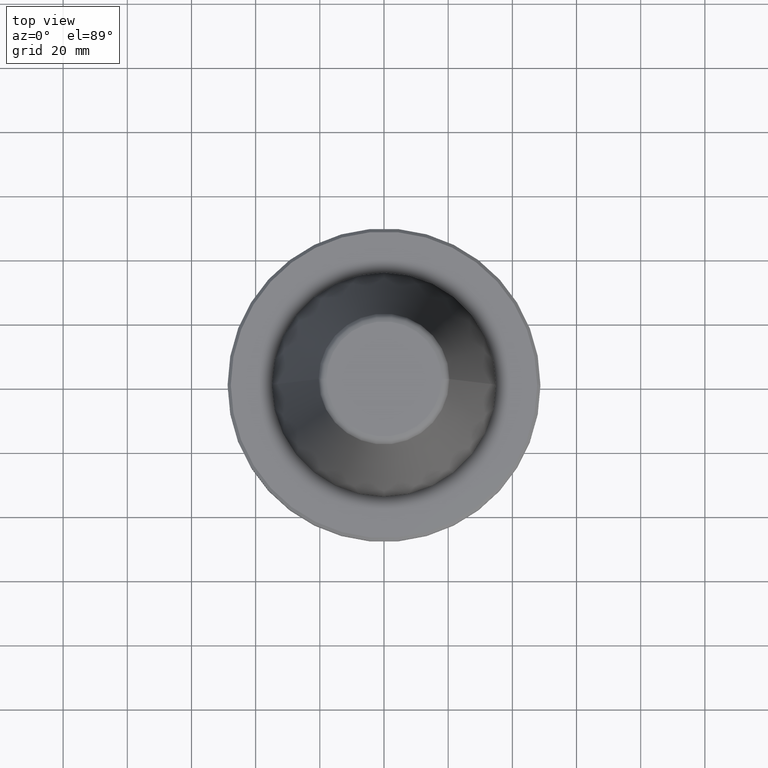
[diagram: clean part render]
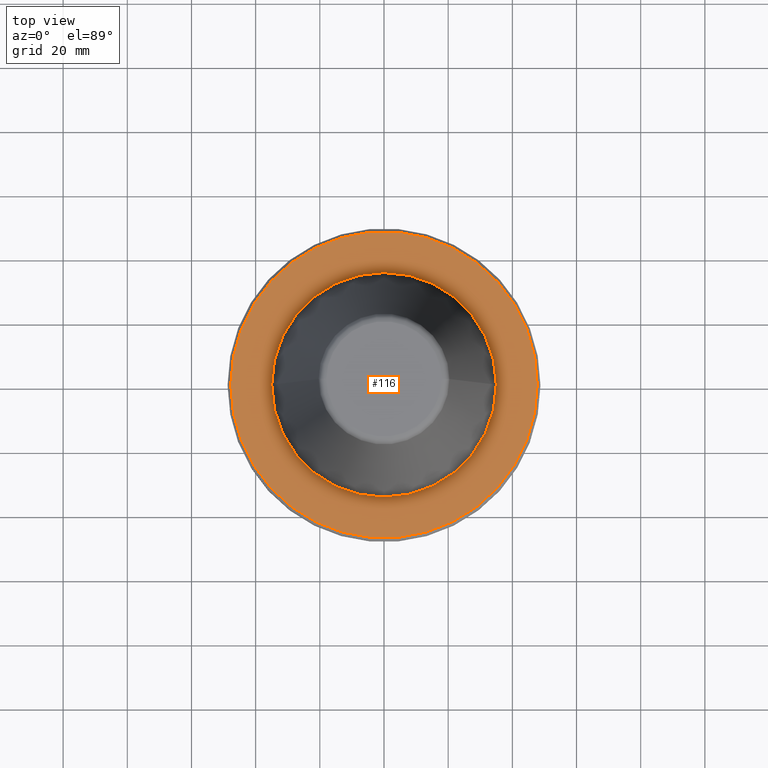
[diagram: same view with one face highlighted and labeled with its STEP entity id]
A machine part, top view. The second image highlights one B-rep face of the part: STEP entity #116.
In plain terms, the highlighted planar face has unit normal (0, 0, -1).
Its self-contained STEP definition (entity closure, byte-faithful):
#23 = DIRECTION ( 'NONE',  ( -0.0000000000000000000, -0.0000000000000000000, 1.000000000000000000 ) ) ;
#49 = DIRECTION ( 'NONE',  ( 1.000000000000000000, 0.0000000000000000000, 0.0000000000000000000 ) ) ;
#116 = ADVANCED_FACE ( 'NONE', ( #315, #158 ), #924, .F. ) ;
#120 = VERTEX_POINT ( 'NONE', #464 ) ;
#140 = EDGE_CURVE ( 'NONE', #771, #426, #479, .T. ) ;
#158 = FACE_OUTER_BOUND ( 'NONE', #583, .T. ) ;
#179 = DIRECTION ( 'NONE',  ( -0.0000000000000000000, -0.0000000000000000000, 1.000000000000000000 ) ) ;
#190 = DIRECTION ( 'NONE',  ( -0.0000000000000000000, -0.0000000000000000000, 1.000000000000000000 ) ) ;
#205 = EDGE_LOOP ( 'NONE', ( #469, #243 ) ) ;
#220 = ORIENTED_EDGE ( 'NONE', *, *, #454, .T. ) ;
#243 = ORIENTED_EDGE ( 'NONE', *, *, #358, .F. ) ;
#252 = DIRECTION ( 'NONE',  ( -0.0000000000000000000, -0.0000000000000000000, 1.000000000000000000 ) ) ;
#307 = VERTEX_POINT ( 'NONE', #884 ) ;
#309 = AXIS2_PLACEMENT_3D ( 'NONE', #679, #931, #871 ) ;
#315 = FACE_BOUND ( 'NONE', #205, .T. ) ;
#351 = EDGE_CURVE ( 'NONE', #307, #120, #508, .T. ) ;
#358 = EDGE_CURVE ( 'NONE', #120, #307, #898, .T. ) ;
#384 = ORIENTED_EDGE ( 'NONE', *, *, #140, .T. ) ;
#400 = CARTESIAN_POINT ( 'NONE',  ( 47.74999999999995700, 5.908920805885974100E-015, -3.199999999999869600 ) ) ;
#426 = VERTEX_POINT ( 'NONE', #665 ) ;
#427 = CARTESIAN_POINT ( 'NONE',  ( 0.0000000000000000000, 0.0000000000000000000, -3.199999999999869600 ) ) ;
#439 = CIRCLE ( 'NONE', #546, 47.74999999999995700 ) ;
#454 = EDGE_CURVE ( 'NONE', #426, #771, #439, .T. ) ;
#464 = CARTESIAN_POINT ( 'NONE',  ( -34.99999999999992200, 4.286263797015727000E-015, -3.199999999999966900 ) ) ;
#469 = ORIENTED_EDGE ( 'NONE', *, *, #351, .F. ) ;
#479 = CIRCLE ( 'NONE', #883, 47.74999999999995700 ) ;
#502 = DIRECTION ( 'NONE',  ( 1.000000000000000000, 0.0000000000000000000, 0.0000000000000000000 ) ) ;
#508 = CIRCLE ( 'NONE', #737, 34.99999999999992200 ) ;
#546 = AXIS2_PLACEMENT_3D ( 'NONE', #427, #190, #502 ) ;
#583 = EDGE_LOOP ( 'NONE', ( #220, #384 ) ) ;
#634 = CARTESIAN_POINT ( 'NONE',  ( 0.0000000000000000000, 0.0000000000000000000, -3.199999999999869600 ) ) ;
#655 = CARTESIAN_POINT ( 'NONE',  ( 0.0000000000000000000, 0.0000000000000000000, -3.199999999999869600 ) ) ;
#665 = CARTESIAN_POINT ( 'NONE',  ( -47.74999999999995700, 0.0000000000000000000, -3.199999999999869600 ) ) ;
#679 = CARTESIAN_POINT ( 'NONE',  ( 0.0000000000000000000, 47.74999999999995700, -3.199999999999869600 ) ) ;
#693 = AXIS2_PLACEMENT_3D ( 'NONE', #861, #252, #876 ) ;
#725 = DIRECTION ( 'NONE',  ( 1.000000000000000000, 0.0000000000000000000, 0.0000000000000000000 ) ) ;
#737 = AXIS2_PLACEMENT_3D ( 'NONE', #634, #179, #725 ) ;
#771 = VERTEX_POINT ( 'NONE', #400 ) ;
#861 = CARTESIAN_POINT ( 'NONE',  ( 0.0000000000000000000, 0.0000000000000000000, -3.199999999999869600 ) ) ;
#871 = DIRECTION ( 'NONE',  ( -1.000000000000000000, 0.0000000000000000000, -0.0000000000000000000 ) ) ;
#876 = DIRECTION ( 'NONE',  ( 1.000000000000000000, 0.0000000000000000000, 0.0000000000000000000 ) ) ;
#883 = AXIS2_PLACEMENT_3D ( 'NONE', #655, #23, #49 ) ;
#884 = CARTESIAN_POINT ( 'NONE',  ( 34.99999999999992200, 0.0000000000000000000, -3.199999999999966900 ) ) ;
#898 = CIRCLE ( 'NONE', #693, 34.99999999999992200 ) ;
#924 = PLANE ( 'NONE',  #309 ) ;
#931 = DIRECTION ( 'NONE',  ( 0.0000000000000000000, 0.0000000000000000000, -1.000000000000000000 ) ) ;